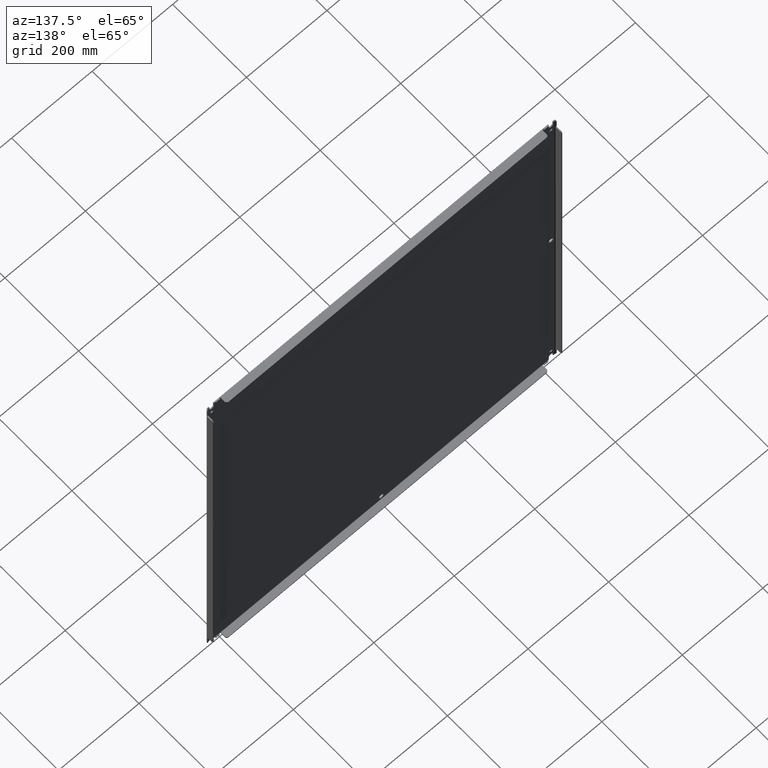
[diagram: clean part render]
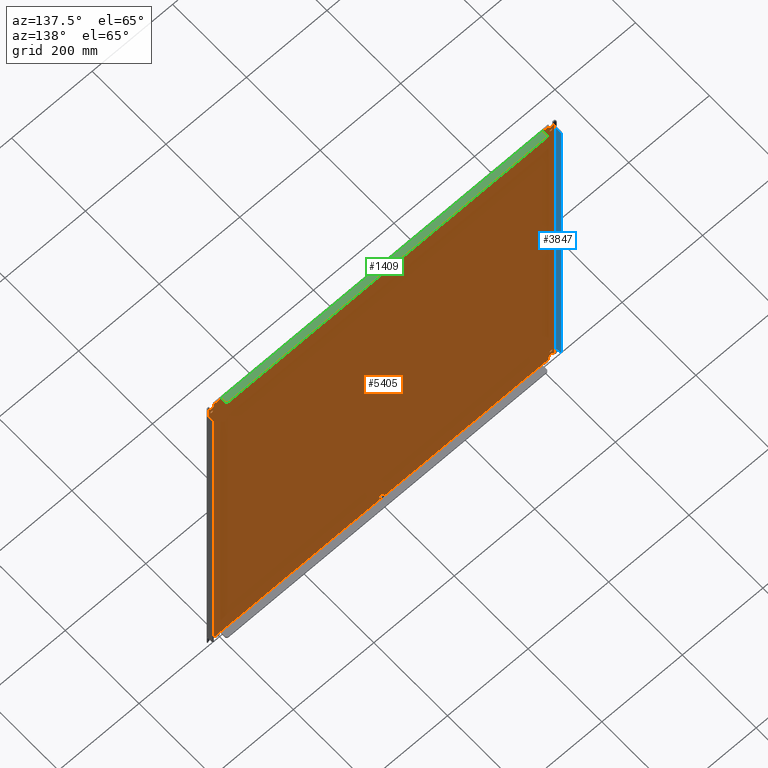
[diagram: same view with three faces highlighted in distinct colors, each labeled with its STEP entity id]
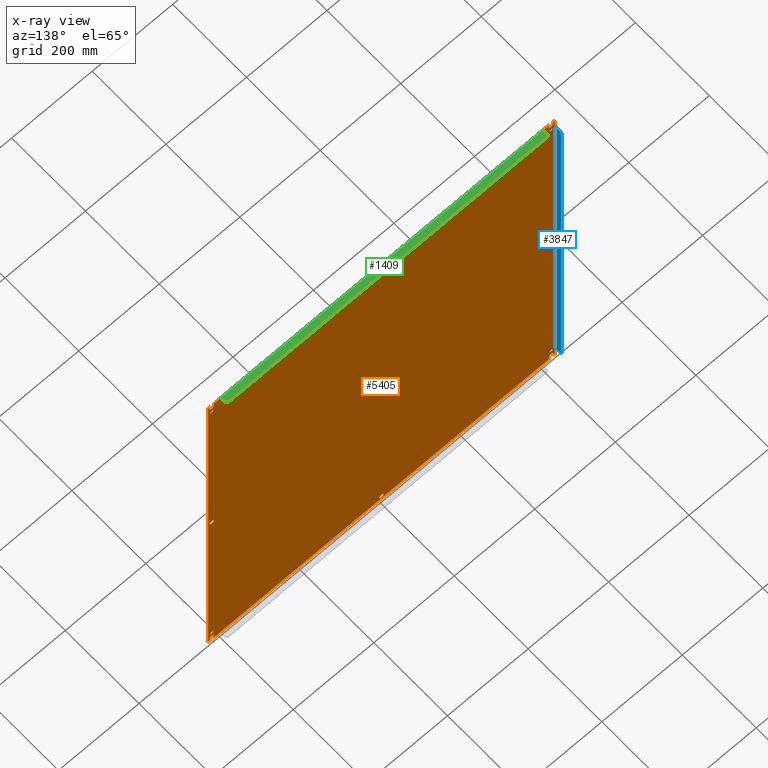
[diagram: x-ray of the same camera — body ghosted, the three highlighted faces saturated]
A machine part, auxiliary view with three faces highlighted in distinct colors.
The next image is the same camera in x-ray (body ghosted, the three faces saturated) — at least one of them is partly hidden behind the body in this view.
Their STEP definitions:

[orange] entity #5405 — the highlighted planar face has unit normal (0, 1, 0).
#2 = CARTESIAN_POINT ( 'NONE',  ( 16.37525000000000119, 0.09499999999999998723, -19.94199999999999662 ) ) ;
#28 = VERTEX_POINT ( 'NONE', #1208 ) ;
#52 = CARTESIAN_POINT ( 'NONE',  ( -16.81275000000000119, 0.09499999999999998723, 19.88800000000000168 ) ) ;
#56 = DIRECTION ( 'NONE',  ( 0.0000000000000000000, -1.000000000000000000, 0.0000000000000000000 ) ) ;
#75 = CARTESIAN_POINT ( 'NONE',  ( -17.66400000000000148, 0.09499999999999998723, -19.94199999999999662 ) ) ;
#99 = EDGE_CURVE ( 'NONE', #722, #2809, #5694, .T. ) ;
#186 = AXIS2_PLACEMENT_3D ( 'NONE', #4205, #1819, #1225 ) ;
#194 = CARTESIAN_POINT ( 'NONE',  ( -17.66400000000000148, 0.09499999999999998723, 19.94199999999999662 ) ) ;
#235 = CARTESIAN_POINT ( 'NONE',  ( 16.59400000000000119, 0.09499999999999998723, 0.0000000000000000000 ) ) ;
#257 = ORIENTED_EDGE ( 'NONE', *, *, #3188, .T. ) ;
#280 = CARTESIAN_POINT ( 'NONE',  ( -17.66400000000000148, 0.09499999999999998723, 19.88800000000000168 ) ) ;
#307 = LINE ( 'NONE', #352, #3799 ) ;
#334 = ORIENTED_EDGE ( 'NONE', *, *, #6035, .T. ) ;
#352 = CARTESIAN_POINT ( 'NONE',  ( 16.81275000000000119, 0.09499999999999998723, 20.66399999999999793 ) ) ;
#374 = CARTESIAN_POINT ( 'NONE',  ( -16.59400000000000119, 0.09499999999999998723, -18.70350000000000179 ) ) ;
#397 = VERTEX_POINT ( 'NONE', #7806 ) ;
#445 = CARTESIAN_POINT ( 'NONE',  ( 16.81275000000000119, 0.09499999999999995948, 19.59400000000000119 ) ) ;
#449 = VERTEX_POINT ( 'NONE', #6021 ) ;
#450 = VERTEX_POINT ( 'NONE', #4827 ) ;
#493 = CARTESIAN_POINT ( 'NONE',  ( 16.59400000000000119, 0.09499999999999998723, -18.98450000000000060 ) ) ;
#497 = CIRCLE ( 'NONE', #2699, 0.2187499999999994171 ) ;
#498 = EDGE_CURVE ( 'NONE', #2481, #1784, #7559, .T. ) ;
#505 = ORIENTED_EDGE ( 'NONE', *, *, #5803, .T. ) ;
#528 = ORIENTED_EDGE ( 'NONE', *, *, #926, .T. ) ;
#534 = LINE ( 'NONE', #7605, #7369 ) ;
#597 = CARTESIAN_POINT ( 'NONE',  ( -16.59400000000000119, 0.09499999999999998723, -18.84400000000000119 ) ) ;
#611 = CARTESIAN_POINT ( 'NONE',  ( -16.59400000000000119, 0.09499999999999998723, 18.70350000000000179 ) ) ;
#638 = VECTOR ( 'NONE', #655, 39.37007874015748143 ) ;
#655 = DIRECTION ( 'NONE',  ( -1.000000000000000000, -0.0000000000000000000, 0.0000000000000000000 ) ) ;
#659 = DIRECTION ( 'NONE',  ( 0.0000000000000000000, 0.0000000000000000000, -1.000000000000000000 ) ) ;
#666 = EDGE_CURVE ( 'NONE', #4177, #1285, #7267, .T. ) ;
#689 = VECTOR ( 'NONE', #2576, 39.37007874015748143 ) ;
#697 = CARTESIAN_POINT ( 'NONE',  ( 16.81275000000000119, 0.09499999999999998723, -19.88800000000000168 ) ) ;
#709 = CARTESIAN_POINT ( 'NONE',  ( 16.59400000000000119, 0.09499999999999994560, -19.59400000000000119 ) ) ;
#722 = VERTEX_POINT ( 'NONE', #7157 ) ;
#727 = EDGE_CURVE ( 'NONE', #3003, #722, #824, .T. ) ;
#807 = AXIS2_PLACEMENT_3D ( 'NONE', #2296, #2224, #5250 ) ;
#816 = VERTEX_POINT ( 'NONE', #2976 ) ;
#824 = CIRCLE ( 'NONE', #2085, 0.2187499999999994171 ) ;
#851 = DIRECTION ( 'NONE',  ( 0.0000000000000000000, 0.0000000000000000000, -1.000000000000000000 ) ) ;
#865 = EDGE_CURVE ( 'NONE', #4272, #3998, #1024, .T. ) ;
#905 = AXIS2_PLACEMENT_3D ( 'NONE', #597, #7884, #1867 ) ;
#909 = ORIENTED_EDGE ( 'NONE', *, *, #6920, .T. ) ;
#924 = ORIENTED_EDGE ( 'NONE', *, *, #5701, .T. ) ;
#926 = EDGE_CURVE ( 'NONE', #2990, #3003, #6619, .T. ) ;
#954 = DIRECTION ( 'NONE',  ( 0.0000000000000000000, 0.0000000000000000000, -1.000000000000000000 ) ) ;
#986 = FACE_OUTER_BOUND ( 'NONE', #2955, .T. ) ;
#1024 = LINE ( 'NONE', #3763, #638 ) ;
#1053 = AXIS2_PLACEMENT_3D ( 'NONE', #3893, #6225, #5083 ) ;
#1091 = ORIENTED_EDGE ( 'NONE', *, *, #4862, .T. ) ;
#1098 = ORIENTED_EDGE ( 'NONE', *, *, #3447, .T. ) ;
#1109 = CARTESIAN_POINT ( 'NONE',  ( 16.94200000000000017, 0.09499999999999998723, 20.66399999999999793 ) ) ;
#1122 = VERTEX_POINT ( 'NONE', #3208 ) ;
#1124 = EDGE_CURVE ( 'NONE', #4778, #6008, #6422, .T. ) ;
#1159 = AXIS2_PLACEMENT_3D ( 'NONE', #6736, #3001, #7874 ) ;
#1173 = FACE_BOUND ( 'NONE', #2584, .T. ) ;
#1176 = CARTESIAN_POINT ( 'NONE',  ( -16.94200000000000017, 0.09499999999999998723, 19.88800000000000168 ) ) ;
#1195 = CARTESIAN_POINT ( 'NONE',  ( 16.37525000000000119, 0.09499999999999995948, 19.59400000000000119 ) ) ;
#1208 = CARTESIAN_POINT ( 'NONE',  ( 16.59400000000000119, 0.09499999999999998723, 18.98450000000000060 ) ) ;
#1225 = DIRECTION ( 'NONE',  ( 0.0000000000000000000, 0.0000000000000000000, -1.000000000000000000 ) ) ;
#1230 = CARTESIAN_POINT ( 'NONE',  ( 16.59400000000000119, 0.09499999999999998723, 18.84400000000000119 ) ) ;
#1251 = DIRECTION ( 'NONE',  ( 0.0000000000000000000, -1.000000000000000000, 0.0000000000000000000 ) ) ;
#1275 = CIRCLE ( 'NONE', #7460, 0.1404999999999992366 ) ;
#1283 = EDGE_CURVE ( 'NONE', #450, #1933, #497, .T. ) ;
#1285 = VERTEX_POINT ( 'NONE', #1743 ) ;
#1305 = AXIS2_PLACEMENT_3D ( 'NONE', #5095, #7463, #1475 ) ;
#1352 = CARTESIAN_POINT ( 'NONE',  ( -16.59400000000000119, 0.09499999999999998723, 18.84400000000000119 ) ) ;
#1362 = EDGE_LOOP ( 'NONE', ( #1091, #4876 ) ) ;
#1438 = VECTOR ( 'NONE', #2648, 39.37007874015748143 ) ;
#1462 = AXIS2_PLACEMENT_3D ( 'NONE', #4349, #1965, #3773 ) ;
#1475 = DIRECTION ( 'NONE',  ( 0.0000000000000000000, 0.0000000000000000000, -1.000000000000000000 ) ) ;
#1527 = CARTESIAN_POINT ( 'NONE',  ( -16.59400000000000119, 0.09499999999999998723, 0.2187500000000000278 ) ) ;
#1532 = CIRCLE ( 'NONE', #6687, 0.2187499999999994171 ) ;
#1572 = EDGE_CURVE ( 'NONE', #3542, #5797, #2753, .T. ) ;
#1580 = DIRECTION ( 'NONE',  ( -0.0000000000000000000, -1.000000000000000000, -0.0000000000000000000 ) ) ;
#1602 = CARTESIAN_POINT ( 'NONE',  ( 16.59400000000000119, 0.09499999999999998723, -18.84400000000000119 ) ) ;
#1650 = CARTESIAN_POINT ( 'NONE',  ( -17.66400000000000148, 0.09499999999999998723, -19.88800000000000168 ) ) ;
#1667 = EDGE_CURVE ( 'NONE', #3998, #2990, #307, .T. ) ;
#1734 = EDGE_CURVE ( 'NONE', #6116, #450, #1532, .T. ) ;
#1743 = CARTESIAN_POINT ( 'NONE',  ( 16.94200000000000017, 0.09499999999999998723, 19.88800000000000168 ) ) ;
#1762 = CARTESIAN_POINT ( 'NONE',  ( -16.59400000000000119, 0.09499999999999994560, -19.59400000000000119 ) ) ;
#1784 = VERTEX_POINT ( 'NONE', #3088 ) ;
#1814 = CARTESIAN_POINT ( 'NONE',  ( -16.59400000000000119, 0.09499999999999994560, 19.59400000000000119 ) ) ;
#1819 = DIRECTION ( 'NONE',  ( -0.0000000000000000000, -1.000000000000000000, -0.0000000000000000000 ) ) ;
#1828 = EDGE_CURVE ( 'NONE', #449, #4709, #2545, .T. ) ;
#1848 = ORIENTED_EDGE ( 'NONE', *, *, #2721, .T. ) ;
#1867 = DIRECTION ( 'NONE',  ( 0.0000000000000000000, 0.0000000000000000000, -1.000000000000000000 ) ) ;
#1926 = DIRECTION ( 'NONE',  ( 0.0000000000000000000, -1.000000000000000000, 0.0000000000000000000 ) ) ;
#1927 = VERTEX_POINT ( 'NONE', #445 ) ;
#1931 = DIRECTION ( 'NONE',  ( 1.000000000000000000, 0.0000000000000000000, -0.0000000000000000000 ) ) ;
#1933 = VERTEX_POINT ( 'NONE', #6443 ) ;
#1965 = DIRECTION ( 'NONE',  ( 0.0000000000000000000, 1.000000000000000000, 0.0000000000000000000 ) ) ;
#2005 = DIRECTION ( 'NONE',  ( -0.0000000000000000000, 0.0000000000000000000, -1.000000000000000000 ) ) ;
#2085 = AXIS2_PLACEMENT_3D ( 'NONE', #3609, #1251, #7816 ) ;
#2099 = VECTOR ( 'NONE', #3572, 39.37007874015748143 ) ;
#2198 = CARTESIAN_POINT ( 'NONE',  ( 16.81275000000000119, 0.09499999999999995948, -19.59400000000000119 ) ) ;
#2208 = ORIENTED_EDGE ( 'NONE', *, *, #5989, .T. ) ;
#2211 = ORIENTED_EDGE ( 'NONE', *, *, #498, .T. ) ;
#2224 = DIRECTION ( 'NONE',  ( -0.0000000000000000000, -1.000000000000000000, -0.0000000000000000000 ) ) ;
#2238 = ORIENTED_EDGE ( 'NONE', *, *, #5925, .T. ) ;
#2248 = DIRECTION ( 'NONE',  ( 1.000000000000000000, 0.0000000000000000000, -0.0000000000000000000 ) ) ;
#2296 = CARTESIAN_POINT ( 'NONE',  ( 16.59400000000000119, 0.09499999999999998723, 18.84400000000000119 ) ) ;
#2314 = LINE ( 'NONE', #75, #7083 ) ;
#2347 = DIRECTION ( 'NONE',  ( 0.0000000000000000000, 0.0000000000000000000, 1.000000000000000000 ) ) ;
#2400 = CARTESIAN_POINT ( 'NONE',  ( 16.59400000000000119, 0.09499999999999998723, 0.2187500000000000278 ) ) ;
#2416 = DIRECTION ( 'NONE',  ( -0.0000000000000000000, -1.000000000000000000, -0.0000000000000000000 ) ) ;
#2475 = CIRCLE ( 'NONE', #2860, 0.2187500000000000278 ) ;
#2481 = VERTEX_POINT ( 'NONE', #7600 ) ;
#2497 = CARTESIAN_POINT ( 'NONE',  ( -16.37525000000000119, 0.09499999999999998723, -19.94199999999999662 ) ) ;
#2503 = DIRECTION ( 'NONE',  ( -1.000000000000000000, -0.0000000000000000000, 0.0000000000000000000 ) ) ;
#2545 = CIRCLE ( 'NONE', #5788, 0.1404999999999992366 ) ;
#2576 = DIRECTION ( 'NONE',  ( 0.0000000000000000000, -0.0000000000000000000, 1.000000000000000000 ) ) ;
#2581 = EDGE_LOOP ( 'NONE', ( #5656, #5534 ) ) ;
#2584 = EDGE_LOOP ( 'NONE', ( #4218, #7738 ) ) ;
#2587 = DIRECTION ( 'NONE',  ( -0.0000000000000000000, -1.000000000000000000, -0.0000000000000000000 ) ) ;
#2610 = AXIS2_PLACEMENT_3D ( 'NONE', #5863, #1580, #954 ) ;
#2614 = VERTEX_POINT ( 'NONE', #52 ) ;
#2626 = CARTESIAN_POINT ( 'NONE',  ( -16.81275000000000119, 0.09499999999999998723, 20.66399999999999793 ) ) ;
#2648 = DIRECTION ( 'NONE',  ( 0.0000000000000000000, -0.0000000000000000000, 1.000000000000000000 ) ) ;
#2654 = DIRECTION ( 'NONE',  ( -0.0000000000000000000, -1.000000000000000000, -0.0000000000000000000 ) ) ;
#2678 = VERTEX_POINT ( 'NONE', #4622 ) ;
#2699 = AXIS2_PLACEMENT_3D ( 'NONE', #7815, #5992, #7231 ) ;
#2716 = AXIS2_PLACEMENT_3D ( 'NONE', #6323, #4547, #851 ) ;
#2718 = ORIENTED_EDGE ( 'NONE', *, *, #666, .T. ) ;
#2721 = EDGE_CURVE ( 'NONE', #5797, #3542, #2475, .T. ) ;
#2735 = DIRECTION ( 'NONE',  ( 0.0000000000000000000, -0.0000000000000000000, 1.000000000000000000 ) ) ;
#2753 = CIRCLE ( 'NONE', #6939, 0.2187500000000000278 ) ;
#2809 = VERTEX_POINT ( 'NONE', #2 ) ;
#2830 = LINE ( 'NONE', #2626, #5959 ) ;
#2835 = DIRECTION ( 'NONE',  ( 0.0000000000000000000, 0.0000000000000000000, -1.000000000000000000 ) ) ;
#2837 = CARTESIAN_POINT ( 'NONE',  ( -17.66400000000000148, 0.09499999999999998723, 19.88800000000000168 ) ) ;
#2847 = FACE_BOUND ( 'NONE', #4682, .T. ) ;
#2853 = CARTESIAN_POINT ( 'NONE',  ( 16.59400000000000119, 0.09499999999999998723, -18.70350000000000179 ) ) ;
#2860 = AXIS2_PLACEMENT_3D ( 'NONE', #5870, #3504, #2835 ) ;
#2882 = VERTEX_POINT ( 'NONE', #1195 ) ;
#2930 = CARTESIAN_POINT ( 'NONE',  ( 16.37525000000000119, 0.09499999999999998723, 20.66399999999999793 ) ) ;
#2955 = EDGE_LOOP ( 'NONE', ( #528, #7661, #6518, #3820, #2208, #4970, #3764, #1098, #5871, #5572, #924, #7701, #2211, #7159, #4974, #5062, #4373, #3074, #2718, #909, #5832, #7281 ) ) ;
#2976 = CARTESIAN_POINT ( 'NONE',  ( -16.81275000000000119, 0.09499999999999998723, -19.88800000000000168 ) ) ;
#2990 = VERTEX_POINT ( 'NONE', #2198 ) ;
#3001 = DIRECTION ( 'NONE',  ( -0.0000000000000000000, -1.000000000000000000, -0.0000000000000000000 ) ) ;
#3003 = VERTEX_POINT ( 'NONE', #7282 ) ;
#3035 = EDGE_CURVE ( 'NONE', #1927, #4177, #5409, .T. ) ;
#3074 = ORIENTED_EDGE ( 'NONE', *, *, #3035, .T. ) ;
#3088 = CARTESIAN_POINT ( 'NONE',  ( -16.37525000000000119, 0.09499999999999995948, 19.59400000000000119 ) ) ;
#3092 = DIRECTION ( 'NONE',  ( -0.0000000000000000000, -1.000000000000000000, -0.0000000000000000000 ) ) ;
#3188 = EDGE_CURVE ( 'NONE', #6579, #4204, #6174, .T. ) ;
#3208 = CARTESIAN_POINT ( 'NONE',  ( 0.0000000000000000000, 0.09499999999999998723, -19.81275000000000119 ) ) ;
#3209 = DIRECTION ( 'NONE',  ( -0.0000000000000000000, -1.000000000000000000, -0.0000000000000000000 ) ) ;
#3223 = CIRCLE ( 'NONE', #2716, 0.2187500000000015821 ) ;
#3247 = CARTESIAN_POINT ( 'NONE',  ( -16.37525000000000119, 0.09499999999999998723, 20.66399999999999793 ) ) ;
#3262 = VERTEX_POINT ( 'NONE', #1176 ) ;
#3292 = CARTESIAN_POINT ( 'NONE',  ( 2.678914873134816267E-17, 0.09499999999999998723, 19.81275000000000119 ) ) ;
#3330 = EDGE_CURVE ( 'NONE', #2678, #2882, #6458, .T. ) ;
#3337 = VECTOR ( 'NONE', #4060, 39.37007874015748143 ) ;
#3344 = CIRCLE ( 'NONE', #807, 0.1404999999999992366 ) ;
#3411 = VECTOR ( 'NONE', #6495, 39.37007874015748143 ) ;
#3414 = CARTESIAN_POINT ( 'NONE',  ( -16.59400000000000119, 0.09499999999999998723, -18.98450000000000060 ) ) ;
#3435 = EDGE_CURVE ( 'NONE', #1784, #3823, #7783, .T. ) ;
#3439 = LINE ( 'NONE', #4627, #3541 ) ;
#3447 = EDGE_CURVE ( 'NONE', #1933, #816, #2830, .T. ) ;
#3458 = DIRECTION ( 'NONE',  ( 0.0000000000000000000, 0.0000000000000000000, -1.000000000000000000 ) ) ;
#3504 = DIRECTION ( 'NONE',  ( -0.0000000000000000000, -1.000000000000000000, -0.0000000000000000000 ) ) ;
#3529 = FACE_BOUND ( 'NONE', #2581, .T. ) ;
#3541 = VECTOR ( 'NONE', #7751, 39.37007874015748143 ) ;
#3542 = VERTEX_POINT ( 'NONE', #1527 ) ;
#3572 = DIRECTION ( 'NONE',  ( -0.0000000000000000000, 0.0000000000000000000, -1.000000000000000000 ) ) ;
#3609 = CARTESIAN_POINT ( 'NONE',  ( 16.59400000000000119, 0.09499999999999994560, -19.59400000000000119 ) ) ;
#3610 = CARTESIAN_POINT ( 'NONE',  ( -16.59400000000000119, 0.09499999999999998723, -0.2187500000000000278 ) ) ;
#3614 = CIRCLE ( 'NONE', #4851, 0.1404999999999992366 ) ;
#3672 = ORIENTED_EDGE ( 'NONE', *, *, #5484, .T. ) ;
#3698 = CARTESIAN_POINT ( 'NONE',  ( 16.81275000000000119, 0.09499999999999998723, 19.88800000000000168 ) ) ;
#3739 = EDGE_CURVE ( 'NONE', #6792, #7060, #4331, .T. ) ;
#3763 = CARTESIAN_POINT ( 'NONE',  ( -17.66400000000000148, 0.09499999999999998723, -19.88800000000000168 ) ) ;
#3764 = ORIENTED_EDGE ( 'NONE', *, *, #1283, .T. ) ;
#3773 = DIRECTION ( 'NONE',  ( 0.0000000000000000000, -0.0000000000000000000, 1.000000000000000000 ) ) ;
#3786 = CARTESIAN_POINT ( 'NONE',  ( -16.59400000000000119, 0.09499999999999998723, 0.0000000000000000000 ) ) ;
#3792 = VECTOR ( 'NONE', #7035, 39.37007874015748143 ) ;
#3799 = VECTOR ( 'NONE', #6369, 39.37007874015748143 ) ;
#3820 = ORIENTED_EDGE ( 'NONE', *, *, #4069, .T. ) ;
#3823 = VERTEX_POINT ( 'NONE', #6730 ) ;
#3893 = CARTESIAN_POINT ( 'NONE',  ( 16.59400000000000119, 0.09499999999999998723, 0.0000000000000000000 ) ) ;
#3895 = LINE ( 'NONE', #1109, #3337 ) ;
#3961 = CIRCLE ( 'NONE', #2610, 0.1404999999999992366 ) ;
#3980 = FACE_BOUND ( 'NONE', #5685, .T. ) ;
#3992 = EDGE_CURVE ( 'NONE', #7056, #7351, #5458, .T. ) ;
#3998 = VERTEX_POINT ( 'NONE', #697 ) ;
#3999 = CARTESIAN_POINT ( 'NONE',  ( 16.59400000000000119, 0.09499999999999998723, -0.2187500000000000278 ) ) ;
#4058 = CARTESIAN_POINT ( 'NONE',  ( -16.37525000000000119, 0.09499999999999998723, 20.66399999999999793 ) ) ;
#4060 = DIRECTION ( 'NONE',  ( -0.0000000000000000000, 0.0000000000000000000, -1.000000000000000000 ) ) ;
#4069 = EDGE_CURVE ( 'NONE', #2809, #5445, #2314, .T. ) ;
#4149 = AXIS2_PLACEMENT_3D ( 'NONE', #1814, #56, #6047 ) ;
#4157 = CARTESIAN_POINT ( 'NONE',  ( -16.94200000000000017, 0.09499999999999998723, -19.88800000000000168 ) ) ;
#4167 = CARTESIAN_POINT ( 'NONE',  ( 0.0000000000000000000, 0.09499999999999998723, 19.37525000000000119 ) ) ;
#4177 = VERTEX_POINT ( 'NONE', #3698 ) ;
#4198 = VECTOR ( 'NONE', #6359, 39.37007874015748143 ) ;
#4204 = VERTEX_POINT ( 'NONE', #2400 ) ;
#4205 = CARTESIAN_POINT ( 'NONE',  ( 0.0000000000000000000, 0.09499999999999998723, 19.59400000000000119 ) ) ;
#4218 = ORIENTED_EDGE ( 'NONE', *, *, #5032, .T. ) ;
#4222 = ORIENTED_EDGE ( 'NONE', *, *, #3992, .T. ) ;
#4252 = VECTOR ( 'NONE', #4267, 39.37007874015748143 ) ;
#4267 = DIRECTION ( 'NONE',  ( -0.0000000000000000000, 0.0000000000000000000, -1.000000000000000000 ) ) ;
#4272 = VERTEX_POINT ( 'NONE', #5603 ) ;
#4280 = ORIENTED_EDGE ( 'NONE', *, *, #7010, .T. ) ;
#4322 = EDGE_LOOP ( 'NONE', ( #257, #3672 ) ) ;
#4331 = CIRCLE ( 'NONE', #186, 0.2187499999999994171 ) ;
#4349 = CARTESIAN_POINT ( 'NONE',  ( -17.66400000000000148, 0.09499999999999998723, 20.66399999999999793 ) ) ;
#4362 = DIRECTION ( 'NONE',  ( 0.0000000000000000000, 0.0000000000000000000, 1.000000000000000000 ) ) ;
#4373 = ORIENTED_EDGE ( 'NONE', *, *, #4873, .T. ) ;
#4393 = EDGE_CURVE ( 'NONE', #6433, #3262, #534, .T. ) ;
#4547 = DIRECTION ( 'NONE',  ( -0.0000000000000000000, -1.000000000000000000, -0.0000000000000000000 ) ) ;
#4595 = AXIS2_PLACEMENT_3D ( 'NONE', #7674, #5290, #7749 ) ;
#4622 = CARTESIAN_POINT ( 'NONE',  ( 16.37525000000000119, 0.09499999999999998723, 19.94199999999999662 ) ) ;
#4627 = CARTESIAN_POINT ( 'NONE',  ( -16.81275000000000119, 0.09499999999999998723, 20.66399999999999793 ) ) ;
#4676 = AXIS2_PLACEMENT_3D ( 'NONE', #709, #1926, #4362 ) ;
#4682 = EDGE_LOOP ( 'NONE', ( #1848, #7540 ) ) ;
#4709 = VERTEX_POINT ( 'NONE', #611 ) ;
#4710 = VERTEX_POINT ( 'NONE', #7215 ) ;
#4778 = VERTEX_POINT ( 'NONE', #493 ) ;
#4827 = CARTESIAN_POINT ( 'NONE',  ( -16.59400000000000119, 0.09499999999999994560, -19.37525000000000119 ) ) ;
#4847 = CIRCLE ( 'NONE', #1159, 0.2187500000000015821 ) ;
#4851 = AXIS2_PLACEMENT_3D ( 'NONE', #1230, #2416, #6714 ) ;
#4853 = FACE_BOUND ( 'NONE', #1362, .T. ) ;
#4862 = EDGE_CURVE ( 'NONE', #4709, #449, #7729, .T. ) ;
#4873 = EDGE_CURVE ( 'NONE', #2882, #1927, #5153, .T. ) ;
#4876 = ORIENTED_EDGE ( 'NONE', *, *, #1828, .T. ) ;
#4970 = ORIENTED_EDGE ( 'NONE', *, *, #1734, .T. ) ;
#4974 = ORIENTED_EDGE ( 'NONE', *, *, #7713, .T. ) ;
#5020 = EDGE_CURVE ( 'NONE', #2614, #2481, #3439, .T. ) ;
#5032 = EDGE_CURVE ( 'NONE', #397, #28, #3344, .T. ) ;
#5062 = ORIENTED_EDGE ( 'NONE', *, *, #3330, .T. ) ;
#5083 = DIRECTION ( 'NONE',  ( 0.0000000000000000000, 0.0000000000000000000, -1.000000000000000000 ) ) ;
#5095 = CARTESIAN_POINT ( 'NONE',  ( 16.59400000000000119, 0.09499999999999998723, -18.84400000000000119 ) ) ;
#5153 = CIRCLE ( 'NONE', #7205, 0.2187500000000015821 ) ;
#5157 = AXIS2_PLACEMENT_3D ( 'NONE', #235, #2654, #3458 ) ;
#5224 = FACE_BOUND ( 'NONE', #4322, .T. ) ;
#5250 = DIRECTION ( 'NONE',  ( 0.0000000000000000000, 0.0000000000000000000, -1.000000000000000000 ) ) ;
#5290 = DIRECTION ( 'NONE',  ( -0.0000000000000000000, -1.000000000000000000, -0.0000000000000000000 ) ) ;
#5291 = AXIS2_PLACEMENT_3D ( 'NONE', #1352, #3092, #659 ) ;
#5337 = EDGE_LOOP ( 'NONE', ( #5478, #4280 ) ) ;
#5405 = ADVANCED_FACE ( 'NONE', ( #3980, #7810, #4853, #1173, #986, #2847, #5224, #3529, #5418 ), #5601, .T. ) ;
#5409 = LINE ( 'NONE', #6877, #689 ) ;
#5418 = FACE_BOUND ( 'NONE', #7458, .T. ) ;
#5421 = CIRCLE ( 'NONE', #4595, 0.2187499999999994171 ) ;
#5445 = VERTEX_POINT ( 'NONE', #2497 ) ;
#5458 = CIRCLE ( 'NONE', #905, 0.1404999999999992366 ) ;
#5471 = CARTESIAN_POINT ( 'NONE',  ( 16.59400000000000119, 0.09499999999999994560, 19.59400000000000119 ) ) ;
#5478 = ORIENTED_EDGE ( 'NONE', *, *, #1124, .T. ) ;
#5484 = EDGE_CURVE ( 'NONE', #4204, #6579, #7324, .T. ) ;
#5534 = ORIENTED_EDGE ( 'NONE', *, *, #3739, .T. ) ;
#5558 = CARTESIAN_POINT ( 'NONE',  ( 16.37525000000000119, 0.09499999999999998723, 20.66399999999999793 ) ) ;
#5572 = ORIENTED_EDGE ( 'NONE', *, *, #4393, .T. ) ;
#5601 = PLANE ( 'NONE',  #1462 ) ;
#5603 = CARTESIAN_POINT ( 'NONE',  ( 16.94200000000000017, 0.09499999999999998723, -19.88800000000000168 ) ) ;
#5656 = ORIENTED_EDGE ( 'NONE', *, *, #6909, .T. ) ;
#5680 = VECTOR ( 'NONE', #2248, 39.37007874015748143 ) ;
#5682 = DIRECTION ( 'NONE',  ( 0.0000000000000000000, 0.0000000000000000000, -1.000000000000000000 ) ) ;
#5685 = EDGE_LOOP ( 'NONE', ( #4222, #334 ) ) ;
#5694 = LINE ( 'NONE', #2930, #2099 ) ;
#5701 = EDGE_CURVE ( 'NONE', #3262, #2614, #6945, .T. ) ;
#5768 = EDGE_CURVE ( 'NONE', #28, #397, #3614, .T. ) ;
#5788 = AXIS2_PLACEMENT_3D ( 'NONE', #7546, #3209, #6265 ) ;
#5797 = VERTEX_POINT ( 'NONE', #3610 ) ;
#5803 = EDGE_CURVE ( 'NONE', #1122, #4710, #4847, .T. ) ;
#5816 = DIRECTION ( 'NONE',  ( -0.0000000000000000000, -1.000000000000000000, -0.0000000000000000000 ) ) ;
#5832 = ORIENTED_EDGE ( 'NONE', *, *, #865, .T. ) ;
#5863 = CARTESIAN_POINT ( 'NONE',  ( -16.59400000000000119, 0.09499999999999998723, -18.84400000000000119 ) ) ;
#5870 = CARTESIAN_POINT ( 'NONE',  ( -16.59400000000000119, 0.09499999999999998723, 0.0000000000000000000 ) ) ;
#5871 = ORIENTED_EDGE ( 'NONE', *, *, #7573, .T. ) ;
#5925 = EDGE_CURVE ( 'NONE', #4710, #1122, #3223, .T. ) ;
#5959 = VECTOR ( 'NONE', #2005, 39.37007874015748143 ) ;
#5975 = LINE ( 'NONE', #4058, #3792 ) ;
#5981 = DIRECTION ( 'NONE',  ( 0.0000000000000000000, -1.000000000000000000, 0.0000000000000000000 ) ) ;
#5989 = EDGE_CURVE ( 'NONE', #5445, #6116, #5975, .T. ) ;
#5992 = DIRECTION ( 'NONE',  ( 0.0000000000000000000, -1.000000000000000000, 0.0000000000000000000 ) ) ;
#6008 = VERTEX_POINT ( 'NONE', #2853 ) ;
#6021 = CARTESIAN_POINT ( 'NONE',  ( -16.59400000000000119, 0.09499999999999998723, 18.98450000000000060 ) ) ;
#6035 = EDGE_CURVE ( 'NONE', #7351, #7056, #3961, .T. ) ;
#6047 = DIRECTION ( 'NONE',  ( 0.0000000000000000000, 0.0000000000000000000, 1.000000000000000000 ) ) ;
#6080 = DIRECTION ( 'NONE',  ( 0.0000000000000000000, -1.000000000000000000, 0.0000000000000000000 ) ) ;
#6116 = VERTEX_POINT ( 'NONE', #7226 ) ;
#6174 = CIRCLE ( 'NONE', #5157, 0.2187500000000000278 ) ;
#6225 = DIRECTION ( 'NONE',  ( -0.0000000000000000000, -1.000000000000000000, -0.0000000000000000000 ) ) ;
#6265 = DIRECTION ( 'NONE',  ( 0.0000000000000000000, 0.0000000000000000000, -1.000000000000000000 ) ) ;
#6323 = CARTESIAN_POINT ( 'NONE',  ( 0.0000000000000000000, 0.09499999999999998723, -19.59400000000000119 ) ) ;
#6359 = DIRECTION ( 'NONE',  ( 1.000000000000000000, 0.0000000000000000000, -0.0000000000000000000 ) ) ;
#6369 = DIRECTION ( 'NONE',  ( 0.0000000000000000000, -0.0000000000000000000, 1.000000000000000000 ) ) ;
#6422 = CIRCLE ( 'NONE', #1305, 0.1404999999999992366 ) ;
#6433 = VERTEX_POINT ( 'NONE', #4157 ) ;
#6443 = CARTESIAN_POINT ( 'NONE',  ( -16.81275000000000119, 0.09499999999999995948, -19.59400000000000119 ) ) ;
#6453 = DIRECTION ( 'NONE',  ( 0.0000000000000000000, 0.0000000000000000000, -1.000000000000000000 ) ) ;
#6458 = LINE ( 'NONE', #5558, #4252 ) ;
#6495 = DIRECTION ( 'NONE',  ( -1.000000000000000000, -0.0000000000000000000, 0.0000000000000000000 ) ) ;
#6518 = ORIENTED_EDGE ( 'NONE', *, *, #99, .T. ) ;
#6579 = VERTEX_POINT ( 'NONE', #3999 ) ;
#6619 = CIRCLE ( 'NONE', #4676, 0.2187499999999994171 ) ;
#6651 = LINE ( 'NONE', #194, #6746 ) ;
#6687 = AXIS2_PLACEMENT_3D ( 'NONE', #1762, #5981, #2347 ) ;
#6714 = DIRECTION ( 'NONE',  ( 0.0000000000000000000, 0.0000000000000000000, -1.000000000000000000 ) ) ;
#6716 = DIRECTION ( 'NONE',  ( 0.0000000000000000000, 0.0000000000000000000, 1.000000000000000000 ) ) ;
#6730 = CARTESIAN_POINT ( 'NONE',  ( -16.37525000000000119, 0.09499999999999998723, 19.94199999999999662 ) ) ;
#6736 = CARTESIAN_POINT ( 'NONE',  ( 0.0000000000000000000, 0.09499999999999998723, -19.59400000000000119 ) ) ;
#6746 = VECTOR ( 'NONE', #1931, 39.37007874015748143 ) ;
#6792 = VERTEX_POINT ( 'NONE', #3292 ) ;
#6877 = CARTESIAN_POINT ( 'NONE',  ( 16.81275000000000119, 0.09499999999999998723, 20.66399999999999793 ) ) ;
#6909 = EDGE_CURVE ( 'NONE', #7060, #6792, #5421, .T. ) ;
#6920 = EDGE_CURVE ( 'NONE', #1285, #4272, #3895, .T. ) ;
#6939 = AXIS2_PLACEMENT_3D ( 'NONE', #3786, #2587, #5682 ) ;
#6945 = LINE ( 'NONE', #2837, #5680 ) ;
#7010 = EDGE_CURVE ( 'NONE', #6008, #4778, #1275, .T. ) ;
#7035 = DIRECTION ( 'NONE',  ( 0.0000000000000000000, -0.0000000000000000000, 1.000000000000000000 ) ) ;
#7056 = VERTEX_POINT ( 'NONE', #3414 ) ;
#7060 = VERTEX_POINT ( 'NONE', #4167 ) ;
#7083 = VECTOR ( 'NONE', #2503, 39.37007874015748143 ) ;
#7157 = CARTESIAN_POINT ( 'NONE',  ( 16.37525000000000119, 0.09499999999999995948, -19.59400000000000119 ) ) ;
#7159 = ORIENTED_EDGE ( 'NONE', *, *, #3435, .T. ) ;
#7205 = AXIS2_PLACEMENT_3D ( 'NONE', #5471, #6080, #6716 ) ;
#7215 = CARTESIAN_POINT ( 'NONE',  ( 2.678914873134843076E-17, 0.09499999999999998723, -19.37525000000000119 ) ) ;
#7226 = CARTESIAN_POINT ( 'NONE',  ( -16.37525000000000119, 0.09499999999999995948, -19.59400000000000119 ) ) ;
#7231 = DIRECTION ( 'NONE',  ( 0.0000000000000000000, 0.0000000000000000000, 1.000000000000000000 ) ) ;
#7267 = LINE ( 'NONE', #280, #4198 ) ;
#7281 = ORIENTED_EDGE ( 'NONE', *, *, #1667, .T. ) ;
#7282 = CARTESIAN_POINT ( 'NONE',  ( 16.59400000000000119, 0.09499999999999994560, -19.37525000000000119 ) ) ;
#7324 = CIRCLE ( 'NONE', #1053, 0.2187500000000000278 ) ;
#7351 = VERTEX_POINT ( 'NONE', #374 ) ;
#7369 = VECTOR ( 'NONE', #2735, 39.37007874015748143 ) ;
#7408 = LINE ( 'NONE', #1650, #3411 ) ;
#7458 = EDGE_LOOP ( 'NONE', ( #505, #2238 ) ) ;
#7460 = AXIS2_PLACEMENT_3D ( 'NONE', #1602, #5816, #6453 ) ;
#7463 = DIRECTION ( 'NONE',  ( -0.0000000000000000000, -1.000000000000000000, -0.0000000000000000000 ) ) ;
#7540 = ORIENTED_EDGE ( 'NONE', *, *, #1572, .T. ) ;
#7546 = CARTESIAN_POINT ( 'NONE',  ( -16.59400000000000119, 0.09499999999999998723, 18.84400000000000119 ) ) ;
#7559 = CIRCLE ( 'NONE', #4149, 0.2187500000000015821 ) ;
#7573 = EDGE_CURVE ( 'NONE', #816, #6433, #7408, .T. ) ;
#7600 = CARTESIAN_POINT ( 'NONE',  ( -16.81275000000000119, 0.09499999999999995948, 19.59400000000000119 ) ) ;
#7605 = CARTESIAN_POINT ( 'NONE',  ( -16.94200000000000017, 0.09499999999999998723, 20.66399999999999793 ) ) ;
#7661 = ORIENTED_EDGE ( 'NONE', *, *, #727, .T. ) ;
#7674 = CARTESIAN_POINT ( 'NONE',  ( 0.0000000000000000000, 0.09499999999999998723, 19.59400000000000119 ) ) ;
#7701 = ORIENTED_EDGE ( 'NONE', *, *, #5020, .T. ) ;
#7713 = EDGE_CURVE ( 'NONE', #3823, #2678, #6651, .T. ) ;
#7729 = CIRCLE ( 'NONE', #5291, 0.1404999999999992366 ) ;
#7738 = ORIENTED_EDGE ( 'NONE', *, *, #5768, .T. ) ;
#7749 = DIRECTION ( 'NONE',  ( 0.0000000000000000000, 0.0000000000000000000, -1.000000000000000000 ) ) ;
#7751 = DIRECTION ( 'NONE',  ( -0.0000000000000000000, 0.0000000000000000000, -1.000000000000000000 ) ) ;
#7783 = LINE ( 'NONE', #3247, #1438 ) ;
#7806 = CARTESIAN_POINT ( 'NONE',  ( 16.59400000000000119, 0.09499999999999998723, 18.70350000000000179 ) ) ;
#7810 = FACE_BOUND ( 'NONE', #5337, .T. ) ;
#7815 = CARTESIAN_POINT ( 'NONE',  ( -16.59400000000000119, 0.09499999999999994560, -19.59400000000000119 ) ) ;
#7816 = DIRECTION ( 'NONE',  ( 0.0000000000000000000, 0.0000000000000000000, 1.000000000000000000 ) ) ;
#7874 = DIRECTION ( 'NONE',  ( 0.0000000000000000000, 0.0000000000000000000, -1.000000000000000000 ) ) ;
#7884 = DIRECTION ( 'NONE',  ( -0.0000000000000000000, -1.000000000000000000, -0.0000000000000000000 ) ) ;

[blue] entity #3847 — the highlighted planar face has unit normal (1, 0, -0).
#149 = LINE ( 'NONE', #627, #7275 ) ;
#162 = DIRECTION ( 'NONE',  ( -6.123031769111889989E-17, 1.000000000000000000, 0.0000000000000000000 ) ) ;
#202 = CIRCLE ( 'NONE', #5254, 0.06300000000000001432 ) ;
#263 = FACE_OUTER_BOUND ( 'NONE', #3065, .T. ) ;
#389 = CARTESIAN_POINT ( 'NONE',  ( -16.98999999999999844, 0.7499999999999998890, -18.72500000000000142 ) ) ;
#451 = EDGE_CURVE ( 'NONE', #3331, #4450, #149, .T. ) ;
#453 = LINE ( 'NONE', #1972, #5101 ) ;
#527 = CARTESIAN_POINT ( 'NONE',  ( -16.98999999999999844, 0.1430000000000000160, 19.88800000000000168 ) ) ;
#559 = CARTESIAN_POINT ( 'NONE',  ( -16.98999999999999844, 0.6250000000000000000, 18.85000000000000142 ) ) ;
#627 = CARTESIAN_POINT ( 'NONE',  ( -16.98999999999999844, 0.6249999999999882316, -18.85000000000000853 ) ) ;
#780 = VECTOR ( 'NONE', #5763, 39.37007874015748143 ) ;
#961 = LINE ( 'NONE', #2267, #6358 ) ;
#1149 = CARTESIAN_POINT ( 'NONE',  ( -16.98999999999999844, 0.1710000000000005127, 18.85000000000000142 ) ) ;
#1239 = DIRECTION ( 'NONE',  ( -1.000000000000000000, -6.123031769111889989E-17, -0.0000000000000000000 ) ) ;
#1321 = VERTEX_POINT ( 'NONE', #6561 ) ;
#1562 = ORIENTED_EDGE ( 'NONE', *, *, #5977, .T. ) ;
#1776 = DIRECTION ( 'NONE',  ( 0.0000000000000000000, 1.000000000000000000, 3.469013325287952662E-14 ) ) ;
#1793 = ORIENTED_EDGE ( 'NONE', *, *, #6310, .T. ) ;
#1818 = AXIS2_PLACEMENT_3D ( 'NONE', #4872, #1239, #5392 ) ;
#1972 = CARTESIAN_POINT ( 'NONE',  ( -16.98999999999999844, 0.7500000000000001110, 20.66399999999999793 ) ) ;
#2061 = VERTEX_POINT ( 'NONE', #559 ) ;
#2267 = CARTESIAN_POINT ( 'NONE',  ( -16.98999999999999844, 0.7500000000000001110, -18.85000000000000853 ) ) ;
#2422 = CARTESIAN_POINT ( 'NONE',  ( -16.98999999999999844, 0.6249999999999916733, -18.85000000000000497 ) ) ;
#2511 = CARTESIAN_POINT ( 'NONE',  ( -16.98999999999999844, 0.7500000000000001110, 18.72500000000000142 ) ) ;
#2793 = VERTEX_POINT ( 'NONE', #6558 ) ;
#3033 = DIRECTION ( 'NONE',  ( 0.0000000000000000000, 0.0000000000000000000, -1.000000000000000000 ) ) ;
#3065 = EDGE_LOOP ( 'NONE', ( #3755, #1562, #7730, #5160, #1793, #3471, #7245, #5244 ) ) ;
#3297 = LINE ( 'NONE', #2511, #4513 ) ;
#3331 = VERTEX_POINT ( 'NONE', #2422 ) ;
#3471 = ORIENTED_EDGE ( 'NONE', *, *, #6200, .T. ) ;
#3688 = CARTESIAN_POINT ( 'NONE',  ( -16.98999999999999844, 0.1710000000000010123, 18.91300000000000026 ) ) ;
#3736 = PLANE ( 'NONE',  #5515 ) ;
#3755 = ORIENTED_EDGE ( 'NONE', *, *, #3846, .T. ) ;
#3838 = EDGE_CURVE ( 'NONE', #4450, #7856, #453, .T. ) ;
#3847 = ADVANCED_FACE ( 'NONE', ( #263 ), #3736, .T. ) ;
#3846 = EDGE_CURVE ( 'NONE', #7856, #2061, #3297, .T. ) ;
#3861 = CARTESIAN_POINT ( 'NONE',  ( -16.98999999999999844, 0.7500000000000001110, 18.85000000000000142 ) ) ;
#3914 = VECTOR ( 'NONE', #3033, 39.37007874015748143 ) ;
#4253 = LINE ( 'NONE', #3861, #780 ) ;
#4256 = DIRECTION ( 'NONE',  ( 0.0000000000000000000, 0.0000000000000000000, 1.000000000000000000 ) ) ;
#4450 = VERTEX_POINT ( 'NONE', #389 ) ;
#4513 = VECTOR ( 'NONE', #6754, 39.37007874015748854 ) ;
#4777 = EDGE_CURVE ( 'NONE', #5152, #2793, #6800, .T. ) ;
#4872 = CARTESIAN_POINT ( 'NONE',  ( -16.98999999999999844, 0.1710000000000010123, -18.91300000000000026 ) ) ;
#4891 = DIRECTION ( 'NONE',  ( -1.000000000000000000, -6.123031769111889989E-17, -0.0000000000000000000 ) ) ;
#4930 = DIRECTION ( 'NONE',  ( 0.0000000000000000000, 0.7071067811865641151, 0.7071067811865309194 ) ) ;
#5101 = VECTOR ( 'NONE', #4256, 39.37007874015748143 ) ;
#5152 = VERTEX_POINT ( 'NONE', #7327 ) ;
#5160 = ORIENTED_EDGE ( 'NONE', *, *, #4777, .T. ) ;
#5198 = CIRCLE ( 'NONE', #1818, 0.06300000000000001432 ) ;
#5244 = ORIENTED_EDGE ( 'NONE', *, *, #3838, .T. ) ;
#5254 = AXIS2_PLACEMENT_3D ( 'NONE', #3688, #4891, #1776 ) ;
#5392 = DIRECTION ( 'NONE',  ( 0.0000000000000000000, 1.000000000000000000, -1.040703997586385736E-13 ) ) ;
#5515 = AXIS2_PLACEMENT_3D ( 'NONE', #6236, #7461, #162 ) ;
#5763 = DIRECTION ( 'NONE',  ( 6.123031769111889989E-17, -1.000000000000000000, -0.0000000000000000000 ) ) ;
#5857 = EDGE_CURVE ( 'NONE', #6341, #5152, #202, .T. ) ;
#5950 = DIRECTION ( 'NONE',  ( -6.123031769111889989E-17, 1.000000000000000000, 0.0000000000000000000 ) ) ;
#5977 = EDGE_CURVE ( 'NONE', #2061, #6341, #4253, .T. ) ;
#6200 = EDGE_CURVE ( 'NONE', #1321, #3331, #961, .T. ) ;
#6236 = CARTESIAN_POINT ( 'NONE',  ( -16.98999999999999844, 0.7500000000000001110, 20.66399999999999793 ) ) ;
#6310 = EDGE_CURVE ( 'NONE', #2793, #1321, #5198, .T. ) ;
#6341 = VERTEX_POINT ( 'NONE', #1149 ) ;
#6352 = CARTESIAN_POINT ( 'NONE',  ( -16.98999999999999844, 0.7500000000000001110, 18.72500000000000142 ) ) ;
#6358 = VECTOR ( 'NONE', #5950, 39.37007874015748143 ) ;
#6558 = CARTESIAN_POINT ( 'NONE',  ( -16.98999999999999844, 0.1429999999999984339, -18.85656419576191922 ) ) ;
#6561 = CARTESIAN_POINT ( 'NONE',  ( -16.98999999999999844, 0.1710000000000005127, -18.85000000000000142 ) ) ;
#6754 = DIRECTION ( 'NONE',  ( 0.0000000000000000000, -0.7071067811865431318, 0.7071067811865516806 ) ) ;
#6800 = LINE ( 'NONE', #527, #3914 ) ;
#7245 = ORIENTED_EDGE ( 'NONE', *, *, #451, .T. ) ;
#7275 = VECTOR ( 'NONE', #4930, 39.37007874015748143 ) ;
#7327 = CARTESIAN_POINT ( 'NONE',  ( -16.98999999999999844, 0.1430000000000000160, 18.85656419576191922 ) ) ;
#7461 = DIRECTION ( 'NONE',  ( 1.000000000000000000, 6.123031769111889989E-17, -0.0000000000000000000 ) ) ;
#7730 = ORIENTED_EDGE ( 'NONE', *, *, #5857, .T. ) ;
#7856 = VERTEX_POINT ( 'NONE', #6352 ) ;

[green] entity #1409 — the highlighted planar face has unit normal (0, 0, -1).
#351 = AXIS2_PLACEMENT_3D ( 'NONE', #7403, #1843, #700 ) ;
#416 = VERTEX_POINT ( 'NONE', #7248 ) ;
#554 = DIRECTION ( 'NONE',  ( -1.000000000000000000, 0.0000000000000000000, 0.0000000000000000000 ) ) ;
#624 = EDGE_CURVE ( 'NONE', #3558, #4402, #1108, .T. ) ;
#700 = DIRECTION ( 'NONE',  ( 0.0000000000000000000, 1.000000000000000000, 0.0000000000000000000 ) ) ;
#735 = DIRECTION ( 'NONE',  ( -0.7071067811865410224, -0.7071067811865540120, -0.0000000000000000000 ) ) ;
#770 = CARTESIAN_POINT ( 'NONE',  ( -15.74000000000000199, 0.6249999999999991118, 20.08500000000000085 ) ) ;
#1108 = LINE ( 'NONE', #2078, #4104 ) ;
#1126 = VECTOR ( 'NONE', #7382, 39.37007874015748854 ) ;
#1409 = ADVANCED_FACE ( 'NONE', ( #6764 ), #4286, .F. ) ;
#1584 = EDGE_CURVE ( 'NONE', #3446, #5530, #7699, .T. ) ;
#1794 = EDGE_CURVE ( 'NONE', #3050, #3446, #2947, .T. ) ;
#1812 = DIRECTION ( 'NONE',  ( -0.0000000000000000000, 6.123031769111889989E-17, -1.000000000000000000 ) ) ;
#1843 = DIRECTION ( 'NONE',  ( -0.0000000000000000000, 6.123031769111889989E-17, -1.000000000000000000 ) ) ;
#1940 = CARTESIAN_POINT ( 'NONE',  ( -15.61499999999999844, 0.7500000000000001110, 20.08500000000000085 ) ) ;
#2028 = ORIENTED_EDGE ( 'NONE', *, *, #1584, .T. ) ;
#2049 = DIRECTION ( 'NONE',  ( 3.774574084510209845E-15, -1.000000000000000000, -0.0000000000000000000 ) ) ;
#2078 = CARTESIAN_POINT ( 'NONE',  ( 15.74000000000000021, 0.7500000000000001110, 20.08500000000000441 ) ) ;
#2375 = VECTOR ( 'NONE', #554, 39.37007874015748143 ) ;
#2522 = EDGE_CURVE ( 'NONE', #5530, #416, #4858, .T. ) ;
#2635 = VECTOR ( 'NONE', #3274, 39.37007874015748143 ) ;
#2671 = ORIENTED_EDGE ( 'NONE', *, *, #5726, .F. ) ;
#2728 = CARTESIAN_POINT ( 'NONE',  ( 15.73999999999999844, 0.1710000000000006515, 20.08500000000000441 ) ) ;
#2947 = LINE ( 'NONE', #5552, #7229 ) ;
#3027 = LINE ( 'NONE', #6410, #2635 ) ;
#3043 = DIRECTION ( 'NONE',  ( 0.0000000000000000000, 1.000000000000000000, 0.0000000000000000000 ) ) ;
#3050 = VERTEX_POINT ( 'NONE', #1940 ) ;
#3131 = CARTESIAN_POINT ( 'NONE',  ( 15.73999999999999844, 0.6249999999999983347, 20.08500000000002217 ) ) ;
#3274 = DIRECTION ( 'NONE',  ( -1.000000000000000000, 0.0000000000000000000, -0.0000000000000000000 ) ) ;
#3276 = CARTESIAN_POINT ( 'NONE',  ( -15.74000000000000199, 0.1710000000000006515, 20.08500000000000441 ) ) ;
#3446 = VERTEX_POINT ( 'NONE', #770 ) ;
#3495 = EDGE_CURVE ( 'NONE', #7641, #3050, #3027, .T. ) ;
#3558 = VERTEX_POINT ( 'NONE', #2728 ) ;
#3800 = EDGE_LOOP ( 'NONE', ( #2671, #7552, #6488, #6683, #6820, #7333, #2028, #4376 ) ) ;
#3888 = EDGE_CURVE ( 'NONE', #4402, #7641, #4712, .T. ) ;
#4104 = VECTOR ( 'NONE', #4559, 39.37007874015748143 ) ;
#4264 = VECTOR ( 'NONE', #2049, 39.37007874015748143 ) ;
#4286 = PLANE ( 'NONE',  #6423 ) ;
#4313 = CARTESIAN_POINT ( 'NONE',  ( -17.66400000000000148, 0.7500000000000001110, 20.08500000000000085 ) ) ;
#4376 = ORIENTED_EDGE ( 'NONE', *, *, #2522, .T. ) ;
#4402 = VERTEX_POINT ( 'NONE', #5129 ) ;
#4529 = AXIS2_PLACEMENT_3D ( 'NONE', #4877, #1812, #3043 ) ;
#4559 = DIRECTION ( 'NONE',  ( 3.774574084510209845E-15, 1.000000000000000000, -0.0000000000000000000 ) ) ;
#4712 = LINE ( 'NONE', #3131, #1126 ) ;
#4858 = CIRCLE ( 'NONE', #4529, 0.06300000000000001432 ) ;
#4877 = CARTESIAN_POINT ( 'NONE',  ( -15.80300000000000260, 0.1710000000000010123, 20.08500000000000441 ) ) ;
#4914 = DIRECTION ( 'NONE',  ( 0.0000000000000000000, 1.000000000000000000, 6.123031769111889989E-17 ) ) ;
#5018 = CARTESIAN_POINT ( 'NONE',  ( 15.61499999999999666, 0.7499999999999986677, 20.08500000000002217 ) ) ;
#5072 = CARTESIAN_POINT ( 'NONE',  ( -15.74000000000000021, 0.1710000000000043430, 20.08500000000000441 ) ) ;
#5129 = CARTESIAN_POINT ( 'NONE',  ( 15.74000000000000021, 0.6249999999999993339, 20.08500000000001151 ) ) ;
#5467 = DIRECTION ( 'NONE',  ( 0.0000000000000000000, 6.123031769111889989E-17, -1.000000000000000000 ) ) ;
#5506 = LINE ( 'NONE', #7735, #2375 ) ;
#5530 = VERTEX_POINT ( 'NONE', #3276 ) ;
#5552 = CARTESIAN_POINT ( 'NONE',  ( -15.61500000000000021, 0.7500000000000001110, 20.08500000000000085 ) ) ;
#5726 = EDGE_CURVE ( 'NONE', #7543, #416, #5506, .T. ) ;
#5786 = CIRCLE ( 'NONE', #351, 0.06300000000000001432 ) ;
#5831 = CARTESIAN_POINT ( 'NONE',  ( 15.74656419576190025, 0.1429999999999992388, 20.08500000000000085 ) ) ;
#6410 = CARTESIAN_POINT ( 'NONE',  ( -17.66400000000000148, 0.7500000000000001110, 20.08500000000000085 ) ) ;
#6423 = AXIS2_PLACEMENT_3D ( 'NONE', #4313, #5467, #4914 ) ;
#6488 = ORIENTED_EDGE ( 'NONE', *, *, #624, .T. ) ;
#6683 = ORIENTED_EDGE ( 'NONE', *, *, #3888, .T. ) ;
#6764 = FACE_OUTER_BOUND ( 'NONE', #3800, .T. ) ;
#6820 = ORIENTED_EDGE ( 'NONE', *, *, #3495, .T. ) ;
#7179 = EDGE_CURVE ( 'NONE', #7543, #3558, #5786, .T. ) ;
#7229 = VECTOR ( 'NONE', #735, 39.37007874015748143 ) ;
#7248 = CARTESIAN_POINT ( 'NONE',  ( -15.74656419576190025, 0.1430000000000000160, 20.08500000000000085 ) ) ;
#7333 = ORIENTED_EDGE ( 'NONE', *, *, #1794, .T. ) ;
#7382 = DIRECTION ( 'NONE',  ( -0.7071067811865474617, 0.7071067811865474617, -0.0000000000000000000 ) ) ;
#7403 = CARTESIAN_POINT ( 'NONE',  ( 15.80300000000000260, 0.1710000000000010123, 20.08500000000000441 ) ) ;
#7543 = VERTEX_POINT ( 'NONE', #5831 ) ;
#7552 = ORIENTED_EDGE ( 'NONE', *, *, #7179, .T. ) ;
#7641 = VERTEX_POINT ( 'NONE', #5018 ) ;
#7699 = LINE ( 'NONE', #5072, #4264 ) ;
#7735 = CARTESIAN_POINT ( 'NONE',  ( 16.37525000000000119, 0.1430000000000000437, 20.08499999999999730 ) ) ;